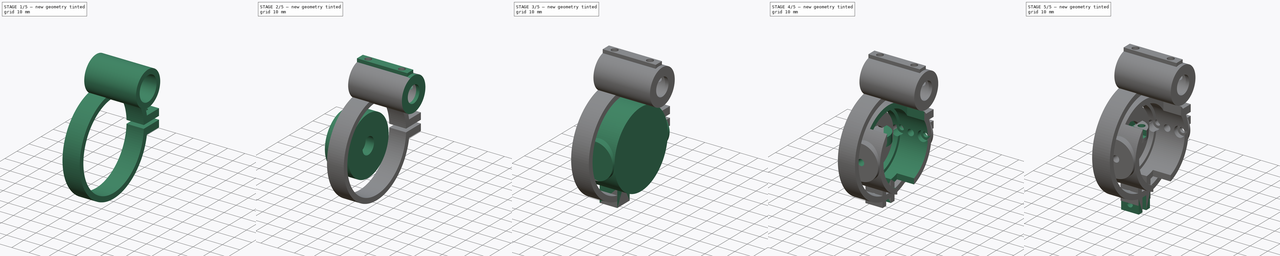
[diagram: build sequence overview — one tinted view per stage of 5, left to right]
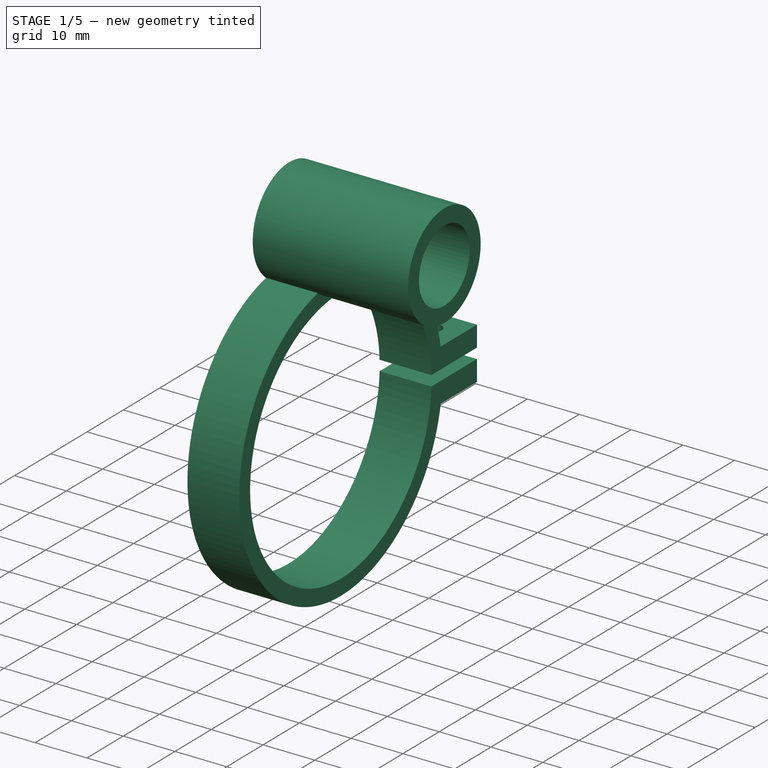
[diagram: stage 1 of 5 — iso view after this stage's code; geometry added in this stage tinted green]
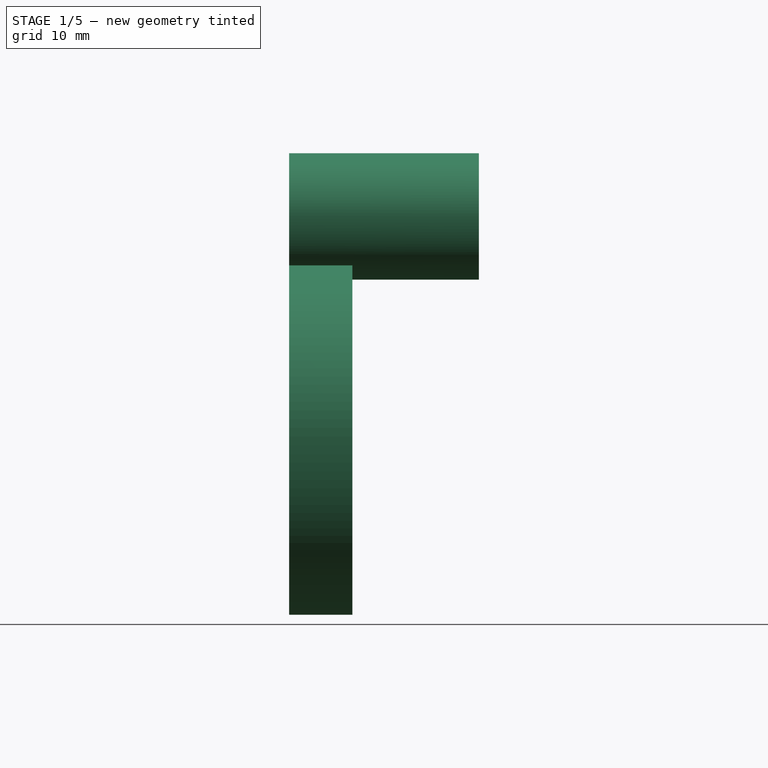
[diagram: stage 1 of 5 — front view after this stage's code; geometry added in this stage tinted green]
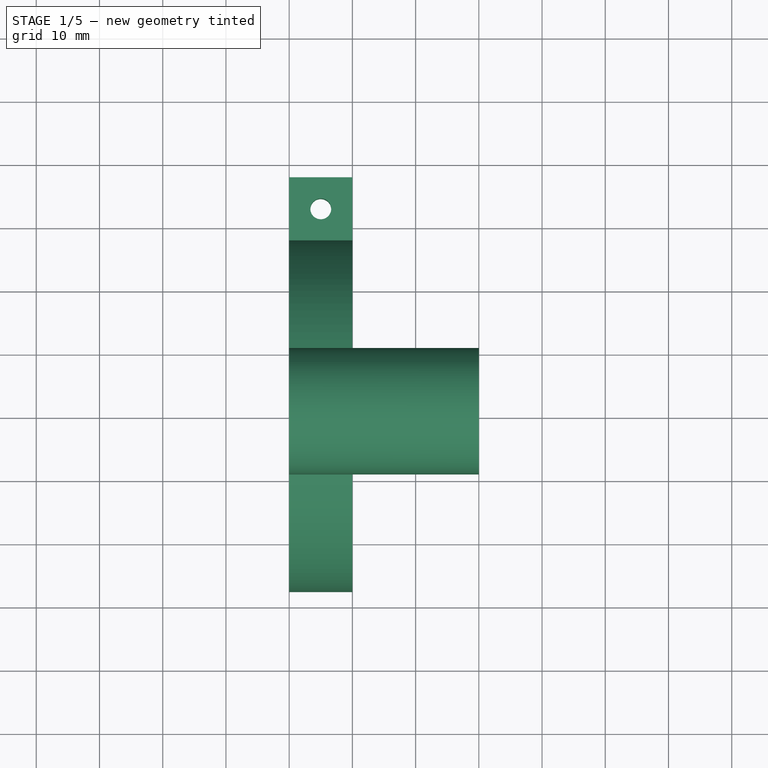
[diagram: stage 1 of 5 — top view after this stage's code; geometry added in this stage tinted green]
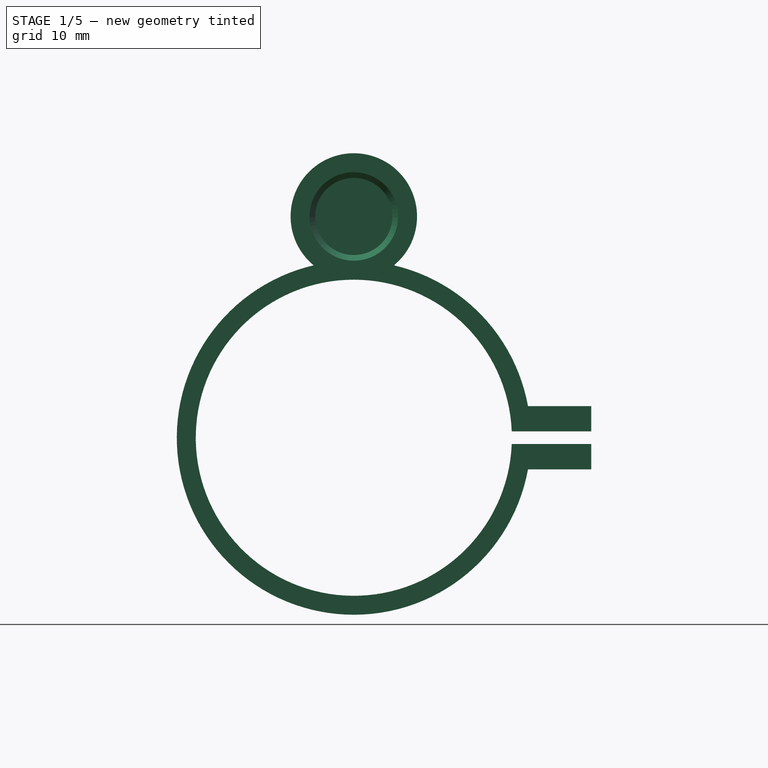
[diagram: stage 1 of 5 — right view after this stage's code; geometry added in this stage tinted green]
FCSTD DOCUMENT  (FreeCAD 0.18.4R)
Label: barrel_parts
License: All rights reserved
LicenseURL: http://en.wikipedia.org/wiki/All_rights_reserved
objects: Sketcher::SketchObject×36, PartDesign::Pocket×22, PartDesign::Pad×12, PartDesign::Body×6, PartDesign::SubtractiveCone×2, Spreadsheet::Sheet×1, PartDesign::AdditiveLoft×1, PartDesign::ShapeBinder×1
note: 117 computed .brp shape members not serialized (recipe doc carries the construction recipe); baked Part::Feature solids carry a one-line shape summary decoded from their .brp

FEATURE [PartDesign::Body] Body003  label="Instruments"
  Group = -> [Sketch049,Pad014,ShapeBinder,Sketch050,Pocket032]
  Origin = -> Origin003
  Placement = pos=(29,0,0) rot=(0,0,1;0rad)
  Tip = -> Pocket032
FEATURE [Sketcher::SketchObject] Sketch051
  MapMode = 5
  Placement = pos=(0,0,0) rot=(0.57735,0.57735,0.57735;2.0944rad)
  Support = -> [YZ_Plane009]
  sketch-geometry (2):
    g0: Circle CenterX=0 CenterY=0 CenterZ=0 NormalX=0 NormalY=0 NormalZ=1 AngleXU=0 Radius=25
    g1: Circle CenterX=0 CenterY=0 CenterZ=0 NormalX=0 NormalY=0 NormalZ=1 AngleXU=0 Radius=28
  constraints (4):
    c: Coincident(g0,g-1)
    c: Coincident(g1,g0)
    c: Diameter(g0) = 50
    c: Diameter(g1) = 56
FEATURE [PartDesign::Pad] Pad015
  Length = 10
  Length2 = 100
  Placement = pos=(0,0,0) rot=(0.57735,0.57735,0.57735;2.0944rad)
  Profile = -> Sketch051
  Refine = true
  Type = 0
FEATURE [Sketcher::SketchObject] Sketch052
  ExternalGeometry = -> [Pad015]
  MapMode = 5
  Placement = pos=(0,0,0) rot=(0.57735,0.57735,0.57735;2.0944rad)
  Support = -> [YZ_Plane009]
  sketch-geometry (4):
    g0: LineSegment StartX=27.55 StartY=5 StartZ=0 EndX=37.55 EndY=5 EndZ=0
    g1: LineSegment StartX=37.55 StartY=5 StartZ=0 EndX=37.55 EndY=-5 EndZ=0
    g2: LineSegment StartX=37.55 StartY=-5 StartZ=0 EndX=27.55 EndY=-5 EndZ=0
    g3: LineSegment StartX=27.55 StartY=-5 StartZ=0 EndX=27.55 EndY=5 EndZ=0
  constraints (11):
    c: Coincident(g0,g1)
    c: Coincident(g1,g2)
    c: Coincident(g2,g3)
    c: Coincident(g3,g0)
    c: Horizontal(g0)
    c: Horizontal(g2)
    c: Vertical(g3)
    c: PointOnObject(g0,g-4)
    c: Symmetric(g0,g1,g-1)
    c: DistanceY(g1,g1) = 10
    c: DistanceX(g0,g0) = 10
FEATURE [PartDesign::Pad] Pad016
  BaseFeature = -> Pad015
  Length = 10
  Length2 = 100
  Placement = pos=(0,0,0) rot=(0.57735,0.57735,0.57735;2.0944rad)
  Profile = -> Sketch052
  Refine = true
  Type = 0
FEATURE [Sketcher::SketchObject] Sketch053
  ExternalGeometry = -> [Pad016]
  MapMode = 5
  Placement = pos=(10,-2.1e-15,7.6e-15) rot=(0.57735,0.57735,0.57735;2.0944rad)
  Support = -> [Pad016]
  sketch-geometry (4):
    g0: LineSegment StartX=24.98 StartY=1 StartZ=0 EndX=37.55 EndY=1 EndZ=0
    g1: LineSegment StartX=37.55 StartY=1 StartZ=0 EndX=37.55 EndY=-1 EndZ=0
    g2: LineSegment StartX=37.55 StartY=-1 StartZ=0 EndX=24.98 EndY=-1 EndZ=0
    g3: LineSegment StartX=24.98 StartY=-1 StartZ=0 EndX=24.98 EndY=1 EndZ=0
  constraints (11):
    c: Coincident(g0,g1)
    c: Coincident(g1,g2)
    c: Coincident(g2,g3)
    c: Coincident(g3,g0)
    c: Horizontal(g0)
    c: Horizontal(g2)
    c: Vertical(g3)
    c: PointOnObject(g0,g-3)
    c: PointOnObject(g1,g-4)
    c: Symmetric(g0,g1,g-1)
    c: DistanceY(g1,g1) = 2
FEATURE [PartDesign::Pocket] Pocket033
  BaseFeature = -> Pad016
  Length = 5
  Length2 = 100
  Placement = pos=(0,0,0) rot=(0.57735,0.57735,0.57735;2.0944rad)
  Profile = -> Sketch053
  Refine = true
  Type = 1
FEATURE [Sketcher::SketchObject] Sketch054
  ExternalGeometry = -> [Pocket033]
  MapMode = 5
  Placement = pos=(-1.4e-15,2.2e-15,5) rot=(0,0,-1;1.5708rad)
  Support = -> [Pocket033]
  sketch-geometry (1):
    g0: Circle CenterX=-32.55 CenterY=5 CenterZ=0 NormalX=0 NormalY=0 NormalZ=1 AngleXU=0 Radius=1.65
  constraints (2):
    c: Symmetric(g-4,g-3,g0)
    c: Diameter(g0) = 3.3
FEATURE [PartDesign::Pocket] Pocket034
  BaseFeature = -> Pocket033
  Length = 5
  Length2 = 100
  Placement = pos=(0,0,0) rot=(0.57735,0.57735,0.57735;2.0944rad)
  Profile = -> Sketch054
  Refine = true
  Type = 1
FEATURE [Sketcher::SketchObject] Sketch055
  ExternalGeometry = -> [Pocket034]
  MapMode = 5
  Placement = pos=(1.4e-15,-2.2e-15,-5) rot=(0.707107,0.707107,0;3.14159rad)
  Support = -> [Pocket034]
  sketch-geometry (7):
    g0: LineSegment StartX=30.9622 StartY=2.25 StartZ=0 EndX=34.1377 EndY=2.25 EndZ=0
    g1: LineSegment StartX=34.1377 StartY=2.25 StartZ=0 EndX=35.7254 EndY=5 EndZ=0
    g2: LineSegment StartX=35.7254 StartY=5 StartZ=0 EndX=34.1377 EndY=7.75 EndZ=0
    g3: LineSegment StartX=34.1377 StartY=7.75 StartZ=0 EndX=30.9622 EndY=7.75 EndZ=0
    g4: LineSegment StartX=30.9622 StartY=7.75 StartZ=0 EndX=29.3745 EndY=5 EndZ=0
    g5: LineSegment StartX=29.3745 StartY=5 StartZ=0 EndX=30.9622 EndY=2.25 EndZ=0
    g6: Circle [constr] CenterX=32.55 CenterY=5 CenterZ=0 NormalX=0 NormalY=0 NormalZ=1 AngleXU=0 Radius=3.17543
  constraints (16):
    c: Coincident(g0,g1)
    c: Coincident(g1,g2)
    c: Coincident(g2,g3)
    c: Coincident(g3,g4)
    c: Coincident(g4,g5)
    c: Coincident(g5,g0)
    c: Equal(g0, g1-g5) x5
    c: PointOnObject(g0,g6)
    c: PointOnObject(g1,g6)
    c: PointOnObject(g2,g6)
    c: PointOnObject(g3,g6)
    c: PointOnObject(g4,g6)
    c: PointOnObject(g5,g6)
    c: Coincident(g6,g-3)
    c: Horizontal(g3)
    c: Distance(g2,g0) = 5.5
FEATURE [PartDesign::Pocket] Pocket035
  BaseFeature = -> Pocket034
  Length = 2
  Length2 = 100
  Placement = pos=(0,0,0) rot=(0.57735,0.57735,0.57735;2.0944rad)
  Profile = -> Sketch055
  Refine = true
  Type = 0
FEATURE [Sketcher::SketchObject] Sketch056
  ExternalGeometry = -> [Pocket035]
  MapMode = 5
  Placement = pos=(0,0,0) rot=(0.57735,0.57735,0.57735;2.0944rad)
  Support = -> [YZ_Plane009]
  sketch-geometry (1):
    g0: Circle CenterX=0 CenterY=35 CenterZ=0 NormalX=0 NormalY=0 NormalZ=1 AngleXU=0 Radius=10
  constraints (3):
    c: PointOnObject(g0,g-2)
    c: Tangent(g-3,g0)
    c: Diameter(g0) = 20
FEATURE [PartDesign::Pad] Pad017
  BaseFeature = -> Pocket035
  Length = 30
  Length2 = 100
  Placement = pos=(0,0,0) rot=(0.57735,0.57735,0.57735;2.0944rad)
  Profile = -> Sketch056
  Refine = true
  Type = 0
FEATURE [PartDesign::SubtractiveCone] Cone
  Angle = 360
  AttacherType = Attacher::AttachEngine3D
  AttachmentOffset = pos=(0,0,-15) rot=(0,0,1;0rad)
  BaseFeature = -> Pad017
  Height = 15
  MapMode = 11
  Placement = pos=(15,-1.24e-14,35) rot=(0.707107,0,0.707107;3.14159rad)
  Radius1 = 6.1
  Radius2 = 7
  Refine = true
  Support = -> [Pad017]
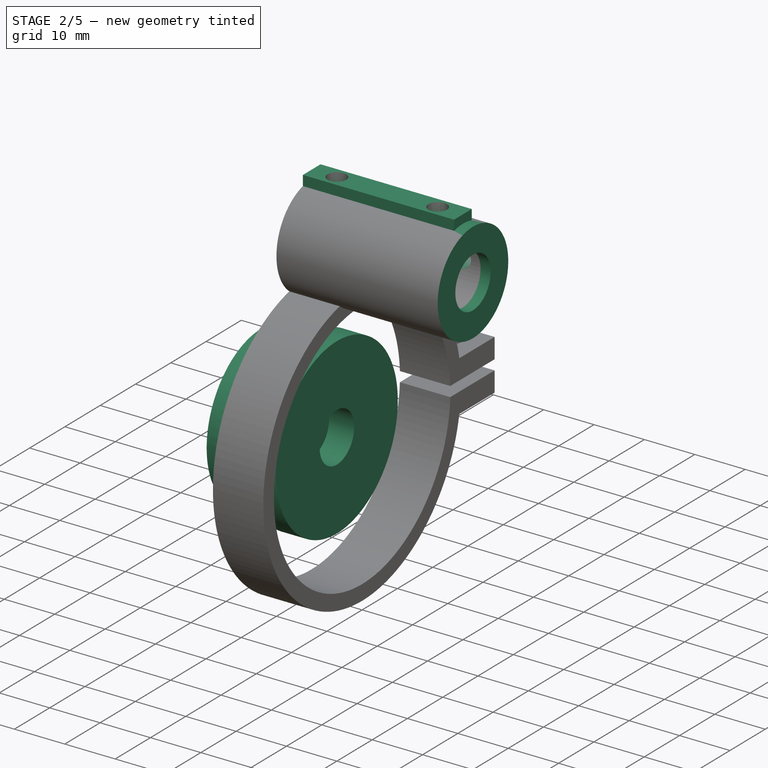
[diagram: stage 2 of 5 — iso view after this stage's code; geometry added in this stage tinted green]
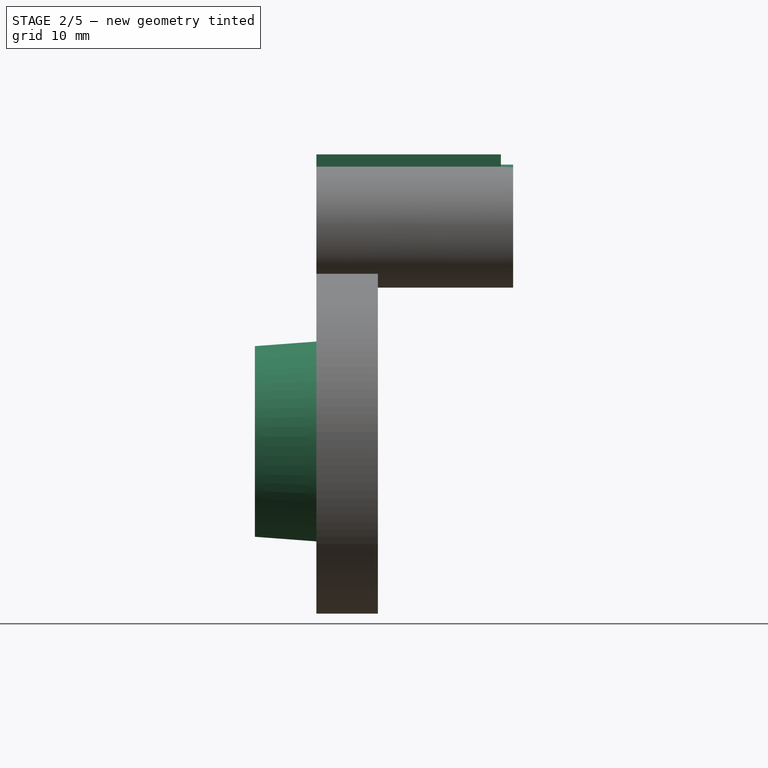
[diagram: stage 2 of 5 — front view after this stage's code; geometry added in this stage tinted green]
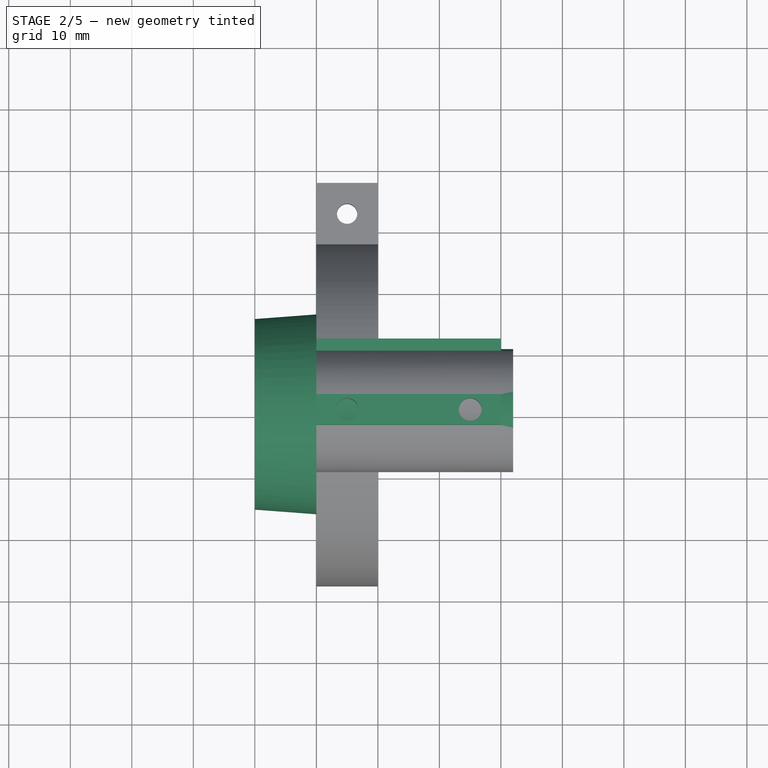
[diagram: stage 2 of 5 — top view after this stage's code; geometry added in this stage tinted green]
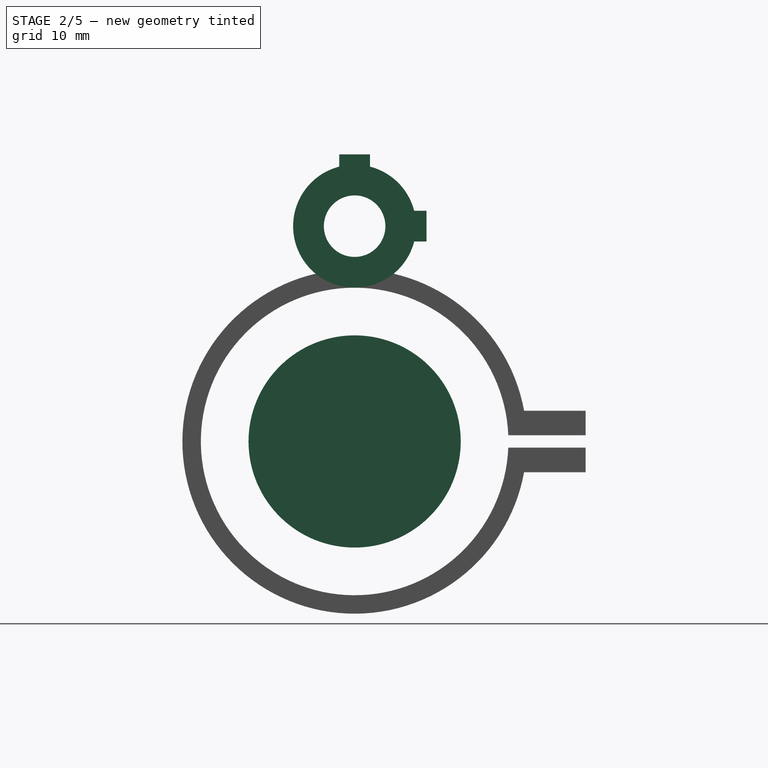
[diagram: stage 2 of 5 — right view after this stage's code; geometry added in this stage tinted green]
FEATURE [Spreadsheet::Sheet] Spreadsheet  label="Values"
  cells = A1=External diameter; B1(ext_diam)=32.5; A2=Internal diameter; B2(int_diam)=31.5; A4=Pivot Diameter; B4(pivot_diam)=37
FEATURE [Sketcher::SketchObject] Sketch007
  MapMode = 5
  Placement = pos=(0,0,0) rot=(0.57735,0.57735,0.57735;2.0944rad)
  Support = -> [YZ_Plane002]
  expr: Constraints[1] = Values.int_diam + 1
  sketch-geometry (1):
    g0: Circle CenterX=0 CenterY=0 CenterZ=0 NormalX=0 NormalY=0 NormalZ=1 AngleXU=0 Radius=16.25
  constraints (2):
    c: Coincident(g0,g-1)
    c: Diameter(g0) = 32.5
FEATURE [Sketcher::SketchObject] Sketch008
  AttachmentOffset = pos=(0,0,-10) rot=(0,0,1;0rad)
  MapMode = 5
  Placement = pos=(-10,2.2e-15,-2.2e-15) rot=(0.57735,0.57735,0.57735;2.0944rad)
  Support = -> [YZ_Plane002]
  expr: Constraints[1] = Values.int_diam - 0.5
  sketch-geometry (1):
    g0: Circle CenterX=0 CenterY=0 CenterZ=0 NormalX=0 NormalY=0 NormalZ=1 AngleXU=0 Radius=15.5
  constraints (2):
    c: Coincident(g0,g-1)
    c: Diameter(g0) = 31
FEATURE [PartDesign::AdditiveLoft] AdditiveLoft
  Closed = false
  Placement = pos=(0,0,0) rot=(0.57735,0.57735,0.57735;2.0944rad)
  Profile = -> Sketch007
  Refine = true
  Ruled = false
  Sections = -> [Sketch008]
FEATURE [Sketcher::SketchObject] Sketch009
  MapMode = 5
  Placement = pos=(0,0,0) rot=(0.57735,0.57735,0.57735;2.0944rad)
  Support = -> [YZ_Plane002]
  expr: Constraints[1] = Values.ext_diam + 2
  sketch-geometry (1):
    g0: Circle CenterX=0 CenterY=0 CenterZ=0 NormalX=0 NormalY=0 NormalZ=1 AngleXU=0 Radius=17.25
  constraints (2):
    c: Coincident(g0,g-1)
    c: Diameter(g0) = 34.5
FEATURE [PartDesign::Pad] Pad003
  BaseFeature = -> AdditiveLoft
  Length = 5
  Length2 = 100
  Placement = pos=(0,0,0) rot=(0.57735,0.57735,0.57735;2.0944rad)
  Profile = -> Sketch009
  Refine = true
  Type = 0
FEATURE [Sketcher::SketchObject] Sketch010
  MapMode = 5
  Placement = pos=(0,0,0) rot=(0.57735,0.57735,0.57735;2.0944rad)
  Support = -> [YZ_Plane002]
  sketch-geometry (1):
    g0: Circle CenterX=0 CenterY=0 CenterZ=0 NormalX=0 NormalY=0 NormalZ=1 AngleXU=0 Radius=4.9
  constraints (2):
    c: Coincident(g0,g-1)
    c: Diameter(g0) = 9.8
FEATURE [PartDesign::Pocket] Pocket004
  BaseFeature = -> Pad003
  Length = 5
  Length2 = 100
  Placement = pos=(0,0,0) rot=(0.57735,0.57735,0.57735;2.0944rad)
  Profile = -> Sketch010
  Refine = true
  Reversed = true
  Type = 1
FEATURE [PartDesign::SubtractiveCone] Cone001
  Angle = 360
  AttacherType = Attacher::AttachEngine3D
  BaseFeature = -> Cone
  Height = 15
  MapMode = 11
  Placement = pos=(9e-16,-1.8e-15,35) rot=(0.707107,0,0.707107;3.14159rad)
  Radius1 = 7
  Radius2 = 6.1
  Refine = true
  Support = -> [Cone]
FEATURE [Sketcher::SketchObject] Sketch057
  ExternalGeometry = -> [Cone001]
  MapMode = 5
  Placement = pos=(0,0,0) rot=(0.57735,0.57735,0.57735;2.0944rad)
  Support = -> [YZ_Plane009]
  sketch-geometry (8):
    g0: LineSegment StartX=-2.5 StartY=46.6825 StartZ=0 EndX=2.5 EndY=46.6825 EndZ=0
    g1: LineSegment StartX=2.5 StartY=46.6825 StartZ=0 EndX=2.5 EndY=44.6825 EndZ=0
    g2: LineSegment StartX=2.5 StartY=44.6825 StartZ=0 EndX=-2.5 EndY=44.6825 EndZ=0
    g3: LineSegment StartX=-2.5 StartY=44.6825 StartZ=0 EndX=-2.5 EndY=46.6825 EndZ=0
    g4: LineSegment StartX=9.68246 StartY=37.5 StartZ=0 EndX=11.6825 EndY=37.5 EndZ=0
    g5: LineSegment StartX=11.6825 StartY=37.5 StartZ=0 EndX=11.6825 EndY=32.5 EndZ=0
    g6: LineSegment StartX=11.6825 StartY=32.5 StartZ=0 EndX=9.68246 EndY=32.5 EndZ=0
    g7: LineSegment StartX=9.68246 StartY=32.5 StartZ=0 EndX=9.68246 EndY=37.5 EndZ=0
  constraints (24):
    c: Coincident(g0,g1)
    c: Coincident(g1,g2)
    c: Coincident(g2,g3)
    c: Coincident(g3,g0)
    c: Horizontal(g0)
    c: Horizontal(g2)
    c: Vertical(g1)
    c: Vertical(g3)
    c: PointOnObject(g1,g-3)
    c: PointOnObject(g2,g-3)
    c: DistanceX(g0,g0) = 5
    c: Coincident(g4,g5)
    c: Coincident(g5,g6)
    c: Coincident(g6,g7)
    c: Coincident(g7,g4)
    c: Horizontal(g4)
    c: Horizontal(g6)
    c: Vertical(g5)
    c: Vertical(g7)
    c: PointOnObject(g4,g-3)
    c: PointOnObject(g6,g-3)
    c: DistanceY(g5,g5) = 5
    c: DistanceY(g3,g3) = 2
    c: DistanceX(g4,g4) = 2
FEATURE [PartDesign::Pad] Pad018
  BaseFeature = -> Cone001
  Length = 30
  Length2 = 100
  Placement = pos=(9e-16,-1.8e-15,35) rot=(0.707107,0,0.707107;3.14159rad)
  Profile = -> Sketch057
  Refine = true
  Type = 0
FEATURE [Sketcher::SketchObject] Sketch058
  ExternalGeometry = -> [Pad018]
  MapMode = 5
  Placement = pos=(-2.4e-15,2.5e-15,46.6825) rot=(0,0,-1;1.5708rad)
  Support = -> [Pad018]
  sketch-geometry (2):
    g0: Circle CenterX=0 CenterY=25 CenterZ=0 NormalX=0 NormalY=0 NormalZ=1 AngleXU=0 Radius=1.85
    g1: Circle CenterX=0 CenterY=5 CenterZ=0 NormalX=0 NormalY=0 NormalZ=1 AngleXU=0 Radius=1.85
  constraints (6):
    c: PointOnObject(g0,g-2)
    c: PointOnObject(g1,g-2)
    c: Equal(g0,g1)
    c: Diameter(g0) = 3.7
    c: DistanceY(g0,g-3) = 5
    c: DistanceY(g-4,g1) = 5
FEATURE [PartDesign::Pocket] Pocket036
  BaseFeature = -> Pad018
  Length = 6
  Length2 = 100
  Placement = pos=(9e-16,-1.8e-15,35) rot=(0.707107,0,0.707107;3.14159rad)
  Profile = -> Sketch058
  Refine = true
  Type = 0
FEATURE [Sketcher::SketchObject] Sketch059
  ExternalGeometry = -> [Pocket036]
  MapMode = 5
  Placement = pos=(6.8e-15,11.6825,35) rot=(0.57735,0.57735,0.57735;4.18879rad)
  Support = -> [Pocket036]
  sketch-geometry (2):
    g0: Circle CenterX=0 CenterY=25 CenterZ=0 NormalX=0 NormalY=0 NormalZ=1 AngleXU=0 Radius=1.85
    g1: Circle CenterX=0 CenterY=5 CenterZ=0 NormalX=0 NormalY=0 NormalZ=1 AngleXU=0 Radius=1.85
  constraints (6):
    c: PointOnObject(g0,g-2)
    c: PointOnObject(g1,g-2)
    c: Equal(g0,g1)
    c: Diameter(g0) = 3.7
    c: DistanceY(g-1,g1) = 5
    c: DistanceY(g0,g-3) = 5
FEATURE [PartDesign::Pocket] Pocket037
  BaseFeature = -> Pocket036
  Length = 6
  Length2 = 100
  Placement = pos=(9e-16,-1.8e-15,35) rot=(0.707107,0,0.707107;3.14159rad)
  Profile = -> Sketch059
  Refine = true
  Type = 0
FEATURE [Sketcher::SketchObject] Sketch060
  ExternalGeometry = -> [Pocket037]
  MapMode = 5
  Placement = pos=(30,-1.09e-14,35) rot=(0.707107,0,0.707107;3.14159rad)
  Support = -> [Pocket037]
  sketch-geometry (2):
    g0: Circle CenterX=0 CenterY=0 CenterZ=0 NormalX=0 NormalY=0 NormalZ=1 AngleXU=0 Radius=10
    g1: Circle CenterX=0 CenterY=0 CenterZ=0 NormalX=0 NormalY=0 NormalZ=1 AngleXU=0 Radius=5
  constraints (4):
    c: Coincident(g0,g-1)
    c: Coincident(g1,g0)
    c: Equal(g-3,g0)
    c: Diameter(g1) = 10
FEATURE [PartDesign::Pad] Pad019
  BaseFeature = -> Pocket037
  Length = 2
  Length2 = 100
  Placement = pos=(9e-16,-1.8e-15,35) rot=(0.707107,0,0.707107;3.14159rad)
  Profile = -> Sketch060
  Refine = true
  Type = 0
FEATURE [PartDesign::Body] Body009  label="Sight2"
  Group = -> [Sketch051,Pad015,Sketch052,Pad016,Sketch053,Pocket033,Sketch054,Pocket034,Sketch055,Pocket035,Sketch056,Pad017,Cone,Cone001,Sketch057,Pad018,Sketch058,Pocket036,Sketch059,Pocket037,Sketch060,Pad019]
  Origin = -> Origin009
  Tip = -> Pad019
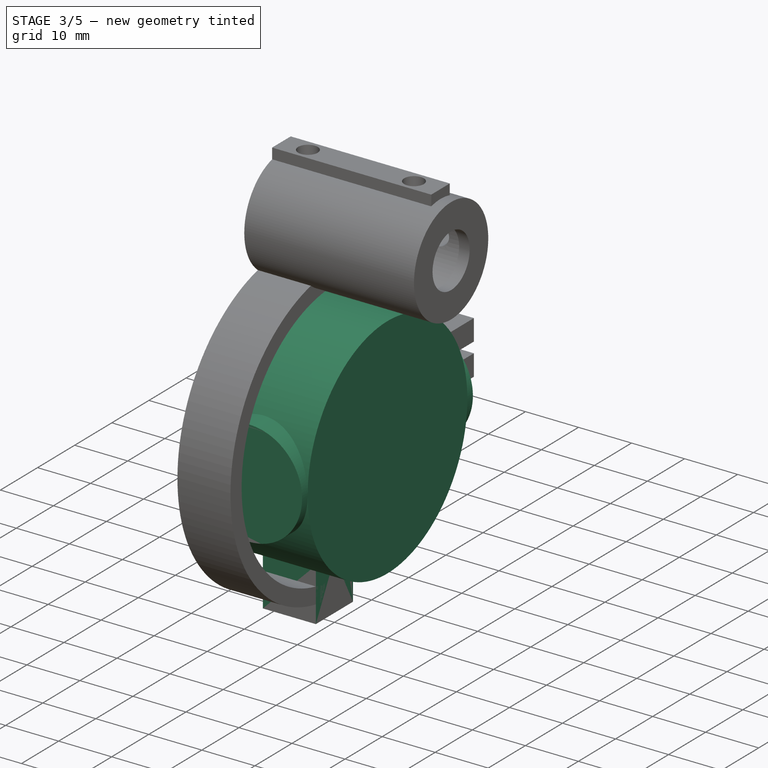
[diagram: stage 3 of 5 — iso view after this stage's code; geometry added in this stage tinted green]
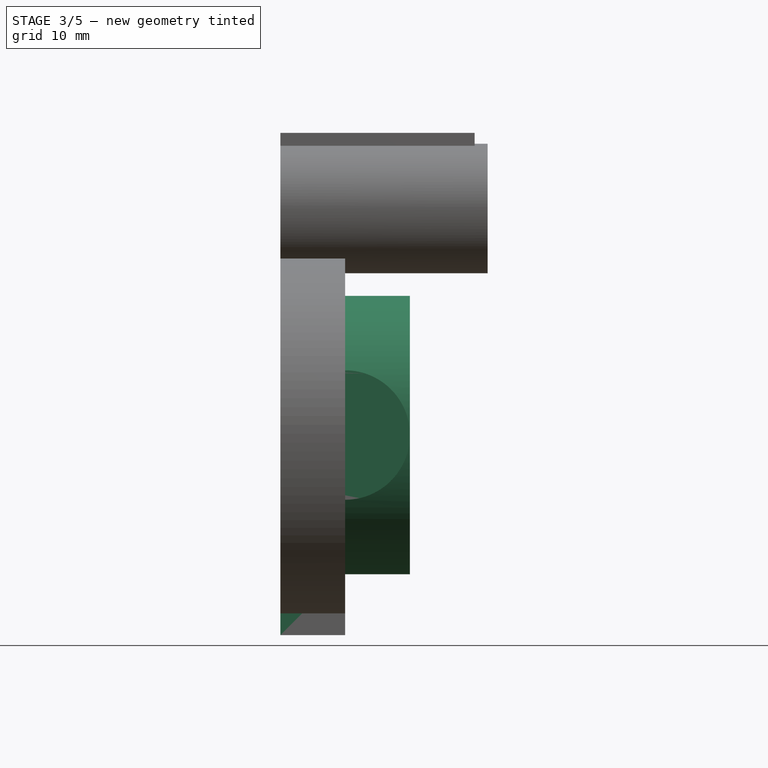
[diagram: stage 3 of 5 — front view after this stage's code; geometry added in this stage tinted green]
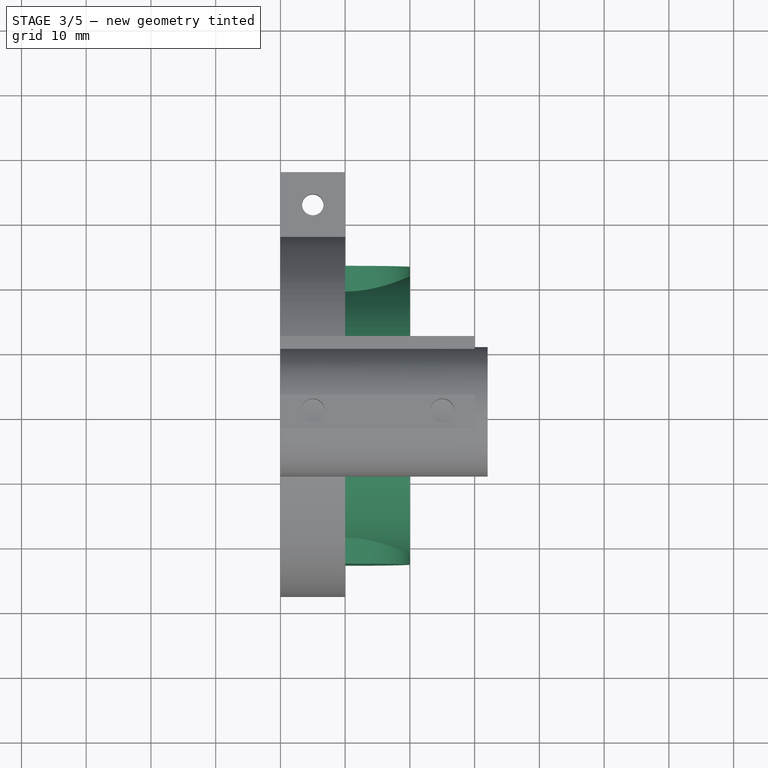
[diagram: stage 3 of 5 — top view after this stage's code; geometry added in this stage tinted green]
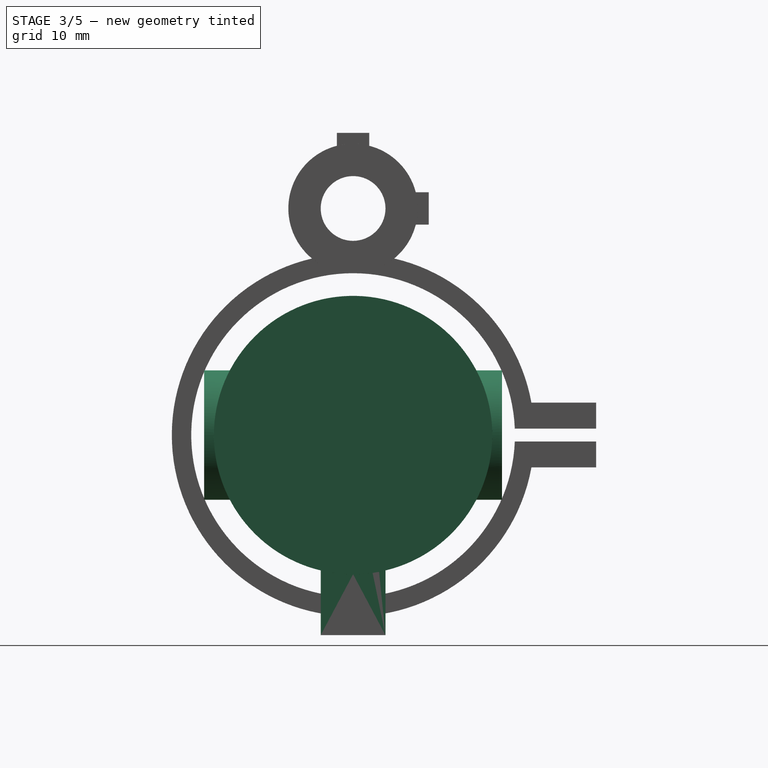
[diagram: stage 3 of 5 — right view after this stage's code; geometry added in this stage tinted green]
FEATURE [Sketcher::SketchObject] Sketch011
  ExternalGeometry = -> [Pocket004]
  MapMode = 5
  Placement = pos=(0,0,0) rot=(0.57735,0.57735,0.57735;2.0944rad)
  Support = -> [YZ_Plane002]
  sketch-geometry (11):
    g0: LineSegment StartX=-9.81495 StartY=0 StartZ=0 EndX=-4.90748 EndY=-8.5 EndZ=0
    g1: LineSegment StartX=-4.90748 StartY=-8.5 StartZ=0 EndX=4.90748 EndY=-8.5 EndZ=0
    g2: LineSegment StartX=4.90748 StartY=-8.5 StartZ=0 EndX=9.81495 EndY=0 EndZ=0
    g3: LineSegment StartX=9.81495 StartY=0 StartZ=0 EndX=4.90748 EndY=8.5 EndZ=0
    g4: LineSegment StartX=4.90748 StartY=8.5 StartZ=0 EndX=-4.90748 EndY=8.5 EndZ=0
    g5: LineSegment StartX=-4.90748 StartY=8.5 StartZ=0 EndX=-9.81495 EndY=0 EndZ=0
    g6: Circle [constr] CenterX=0 CenterY=0 CenterZ=0 NormalX=0 NormalY=0 NormalZ=1 AngleXU=0 Radius=9.81495
    g7: Circle CenterX=0 CenterY=12 CenterZ=0 NormalX=0 NormalY=0 NormalZ=1 AngleXU=0 Radius=1.85
    g8: Circle CenterX=0 CenterY=-12 CenterZ=0 NormalX=0 NormalY=0 NormalZ=1 AngleXU=0 Radius=1.85
    g9: GeomPoint X=0 Y=15.5 Z=0
    g10: GeomPoint X=0 Y=8.5 Z=0
  constraints (25):
    c: Coincident(g0,g1)
    c: Coincident(g1,g2)
    c: Coincident(g2,g3)
    c: Coincident(g3,g4)
    c: Coincident(g4,g5)
    c: Coincident(g5,g0)
    c: Equal(g0, g1-g5) x5
    c: PointOnObject(g0,g6)
    c: PointOnObject(g1,g6)
    c: PointOnObject(g2,g6)
    c: PointOnObject(g3,g6)
    c: PointOnObject(g4,g6)
    c: PointOnObject(g5,g6)
    c: Coincident(g6,g-1)
    c: Horizontal(g4)
    c: Distance(g3,g1) = 17
    c: PointOnObject(g7,g-2)
    c: PointOnObject(g9,g-2)
    c: Equal(g8,g7)
    c: Diameter(g8) = 3.7
    c: Symmetric(g8,g7,g-1)
    c: PointOnObject(g10,g4)
    c: PointOnObject(g9,g-3)
    c: Symmetric(g9,g10,g7)
    c: Distance(g8,g7) = 24  'screw_pitch'
FEATURE [PartDesign::Pocket] Pocket005
  BaseFeature = -> Pocket004
  Length = 5
  Length2 = 100
  Placement = pos=(0,0,0) rot=(0.57735,0.57735,0.57735;2.0944rad)
  Profile = -> Sketch011
  Refine = true
  Type = 1
FEATURE [Sketcher::SketchObject] Sketch012
  ExternalGeometry = -> [Pocket005]
  MapMode = 5
  Placement = pos=(0,0,0) rot=(0.57735,0.57735,0.57735;2.0944rad)
  Support = -> [YZ_Plane002]
  sketch-geometry (3):
    g0: Circle CenterX=-10.3923 CenterY=-6 CenterZ=0 NormalX=0 NormalY=0 NormalZ=1 AngleXU=0 Radius=1.75
    g1: GeomPoint X=-7.36122 Y=-4.25 Z=0
    g2: LineSegment [constr] StartX=-13.4234 StartY=-7.75 StartZ=0 EndX=0 EndY=9e-16 EndZ=0
  constraints (7):
    c: PointOnObject(g1,g-3)
    c: PointOnObject(g2,g-4)
    c: Perpendicular(g-3,g2)
    c: PointOnObject(g0,g2)
    c: Symmetric(g1,g2,g0)
    c: Diameter(g0) = 3.5
    c: Coincident(g2,g-4)
FEATURE [PartDesign::Pocket] Pocket006
  BaseFeature = -> Pocket005
  Length = 5
  Length2 = 100
  Midplane = true
  Placement = pos=(0,0,0) rot=(0.57735,0.57735,0.57735;2.0944rad)
  Profile = -> Sketch012
  Refine = true
  Type = 1
FEATURE [PartDesign::Body] Body002  label="End Cap"
  Group = -> [Sketch007,Sketch008,AdditiveLoft,Sketch009,Pad003,Sketch010,Pocket004,Sketch011,Pocket005,Sketch012,Pocket006]
  Origin = -> Origin002
  Placement = pos=(52,0,0) rot=(0,0,1;0rad)
  Tip = -> Pocket006
FEATURE [Sketcher::SketchObject] Sketch030
  MapMode = 5
  Placement = pos=(0,0,0) rot=(0.57735,0.57735,0.57735;2.0944rad)
  Support = -> [YZ_Plane007]
  expr: Constraints[0] = Values.pivot_diam + 6
  sketch-geometry (1):
    g0: Circle CenterX=0 CenterY=0 CenterZ=0 NormalX=0 NormalY=0 NormalZ=1 AngleXU=0 Radius=21.5
  constraints (2):
    c: Diameter(g0) = 43
    c: Coincident(g0,g-1)
FEATURE [PartDesign::Pad] Pad010
  Length = 20
  Length2 = 100
  Placement = pos=(0,0,0) rot=(0.57735,0.57735,0.57735;2.0944rad)
  Profile = -> Sketch030
  Refine = true
  Type = 0
FEATURE [Sketcher::SketchObject] Sketch031
  MapMode = 5
  Placement = pos=(0,0,0) rot=(1,0,0;1.5708rad)
  Support = -> [XZ_Plane007]
  sketch-geometry (1):
    g0: Circle CenterX=10 CenterY=0 CenterZ=0 NormalX=0 NormalY=0 NormalZ=1 AngleXU=0 Radius=10
  constraints (3):
    c: PointOnObject(g0,g-1)
    c: Diameter(g0) = 20
    c: Tangent(g0,g-2)
FEATURE [PartDesign::Pad] Pad011
  BaseFeature = -> Pad010
  Length = 46
  Length2 = 100
  Midplane = true
  Placement = pos=(0,0,0) rot=(0.57735,0.57735,0.57735;2.0944rad)
  Profile = -> Sketch031
  Refine = true
  Type = 0
FEATURE [Sketcher::SketchObject] Sketch032
  ExternalGeometry = -> [Pad011]
  MapMode = 5
  Placement = pos=(0,0,0) rot=(0.57735,0.57735,0.57735;2.0944rad)
  Support = -> [YZ_Plane007]
  sketch-geometry (4):
    g0: LineSegment StartX=-5 StartY=-20.9105 StartZ=0 EndX=5 EndY=-20.9105 EndZ=0
    g1: LineSegment StartX=5 StartY=-20.9105 StartZ=0 EndX=5 EndY=-30.9105 EndZ=0
    g2: LineSegment StartX=5 StartY=-30.9105 StartZ=0 EndX=-5 EndY=-30.9105 EndZ=0
    g3: LineSegment StartX=-5 StartY=-30.9105 StartZ=0 EndX=-5 EndY=-20.9105 EndZ=0
  constraints (11):
    c: Coincident(g0,g1)
    c: Coincident(g1,g2)
    c: Coincident(g2,g3)
    c: Coincident(g3,g0)
    c: Horizontal(g0)
    c: Vertical(g1)
    c: Vertical(g3)
    c: Symmetric(g1,g2,g-2)
    c: DistanceX(g2,g2) = 10
    c: DistanceY(g1,g1) = 10
    c: PointOnObject(g0,g-4)
FEATURE [PartDesign::Pad] Pad012
  BaseFeature = -> Pad011
  Length = 10
  Length2 = 100
  Placement = pos=(0,0,0) rot=(0.57735,0.57735,0.57735;2.0944rad)
  Profile = -> Sketch032
  Refine = true
  Type = 0
FEATURE [PartDesign::Body] Body007  label="Pivoteer"
  Group = -> [Sketch030,Pad010,Sketch031,Pad011,Sketch032,Pad012,Sketch033,Pocket018,Sketch034,Pocket019,Sketch035,Pocket020,Sketch036,Pocket021,Sketch046,Pocket029,Sketch047,Pocket030,Sketch048,Pocket031]
  Origin = -> Origin007
  Tip = -> Pocket031
FEATURE [Sketcher::SketchObject] Sketch049
  MapMode = 5
  Placement = pos=(0,0,0) rot=(0.57735,0.57735,0.57735;2.0944rad)
  Support = -> [YZ_Plane003]
  expr: Constraints[3] = Values.int_diam - 15.5
  expr: Constraints[2] = Values.int_diam - 0.5
  sketch-geometry (2):
    g0: Circle CenterX=0 CenterY=0 CenterZ=0 NormalX=0 NormalY=0 NormalZ=1 AngleXU=0 Radius=15.5
    g1: Circle CenterX=0 CenterY=0 CenterZ=0 NormalX=0 NormalY=0 NormalZ=1 AngleXU=0 Radius=8
  constraints (4):
    c: Coincident(g0,g-1)
    c: Coincident(g1,g0)
    c: Diameter(g0) = 31
    c: Diameter(g1) = 16
FEATURE [PartDesign::Pad] Pad014
  Length = 2
  Length2 = 100
  Placement = pos=(0,0,0) rot=(0.57735,0.57735,0.57735;2.0944rad)
  Profile = -> Sketch049
  Refine = true
  Type = 0
FEATURE [PartDesign::ShapeBinder] ShapeBinder
  Placement = pos=(0,0,0) rot=(0.57735,0.57735,0.57735;2.0944rad)
  Support = -> [Pocket006]
  TraceSupport = false
FEATURE [Sketcher::SketchObject] Sketch050
  ExternalGeometry = -> [ShapeBinder]
  MapMode = 5
  Placement = pos=(0,0,0) rot=(0.57735,0.57735,-0.57735;4.18879rad)
  Support = -> [Pad014]
  sketch-geometry (2):
    g0: Circle CenterX=-4.9e-15 CenterY=12 CenterZ=0 NormalX=0 NormalY=0 NormalZ=1 AngleXU=0 Radius=1.6
    g1: Circle CenterX=4e-16 CenterY=-12 CenterZ=0 NormalX=0 NormalY=0 NormalZ=1 AngleXU=0 Radius=1.6
  constraints (4):
    c: Coincident(g0,g-3)
    c: Equal(g0,g1)
    c: Diameter(g0) = 3.2
    c: Coincident(g1,g-4)
FEATURE [PartDesign::Pocket] Pocket032
  BaseFeature = -> Pad014
  Length = 5
  Length2 = 100
  Placement = pos=(0,0,0) rot=(0.57735,0.57735,0.57735;2.0944rad)
  Profile = -> Sketch050
  Refine = true
  Type = 1
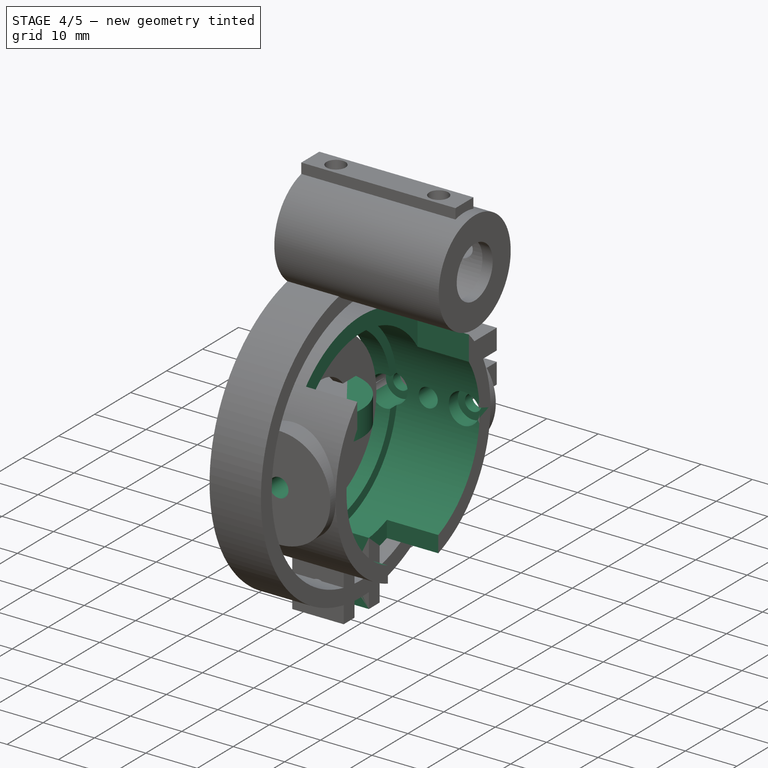
[diagram: stage 4 of 5 — iso view after this stage's code; geometry added in this stage tinted green]
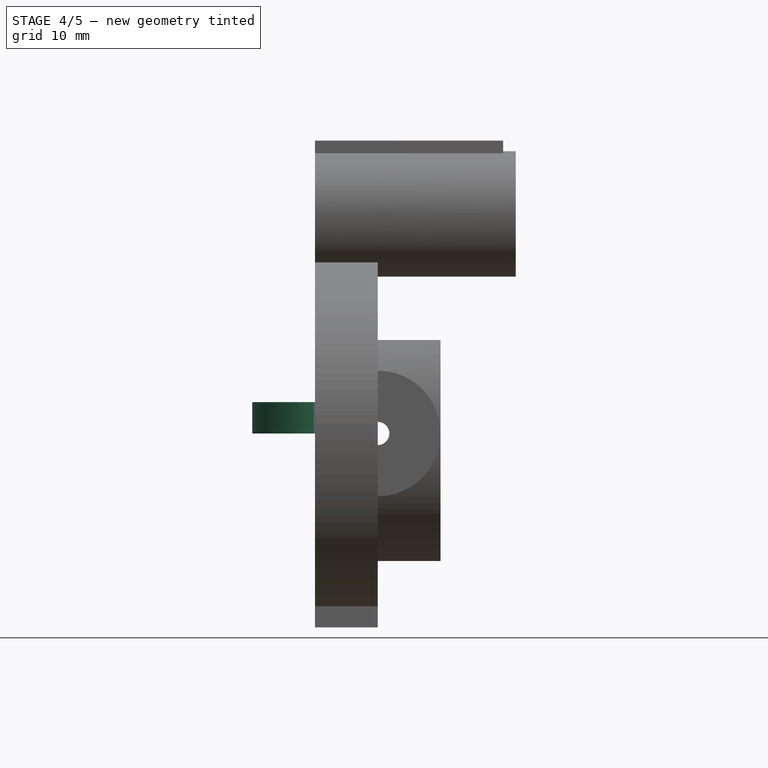
[diagram: stage 4 of 5 — front view after this stage's code; geometry added in this stage tinted green]
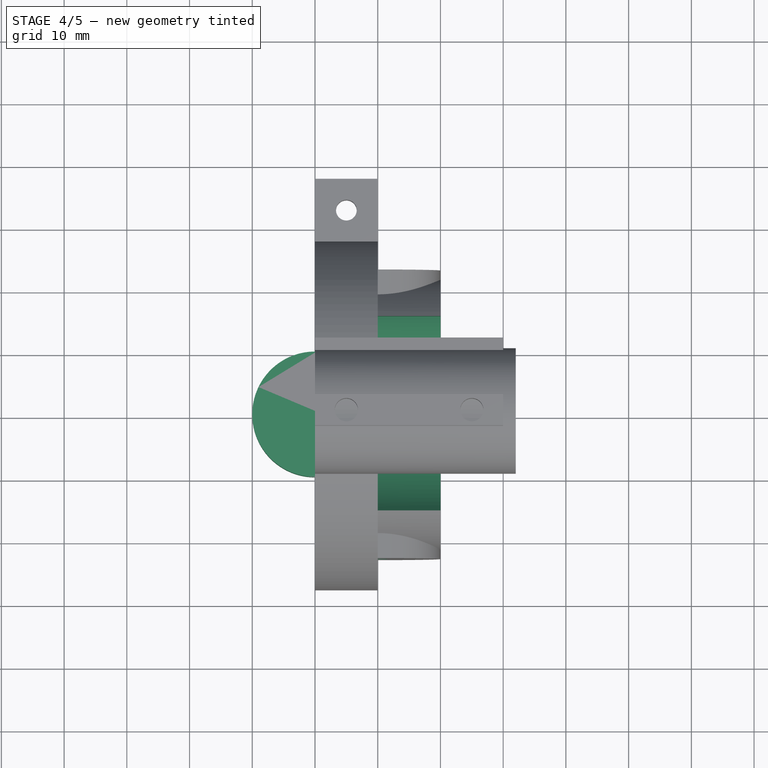
[diagram: stage 4 of 5 — top view after this stage's code; geometry added in this stage tinted green]
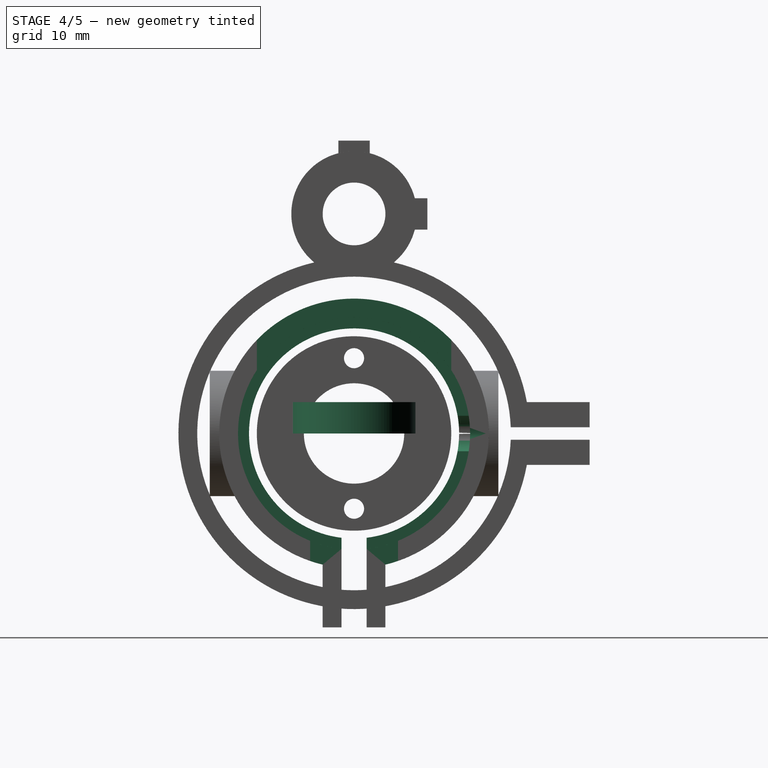
[diagram: stage 4 of 5 — right view after this stage's code; geometry added in this stage tinted green]
FEATURE [Sketcher::SketchObject] Sketch033
  ExternalGeometry = -> [Pad012]
  MapMode = 5
  Placement = pos=(-2e-15,-5,2e-15) rot=(0.57735,0.57735,-0.57735;2.0944rad)
  Support = -> [Pad012]
  sketch-geometry (1):
    g0: Circle CenterX=25.9105 CenterY=5 CenterZ=0 NormalX=0 NormalY=0 NormalZ=1 AngleXU=0 Radius=1.6
  constraints (1):
    c: Diameter(g0) = 3.2
FEATURE [PartDesign::Pocket] Pocket018
  BaseFeature = -> Pad012
  Length = 5
  Length2 = 100
  Placement = pos=(0,0,0) rot=(0.57735,0.57735,0.57735;2.0944rad)
  Profile = -> Sketch033
  Refine = true
  Type = 1
FEATURE [Sketcher::SketchObject] Sketch034
  ExternalGeometry = -> [Pocket018]
  MapMode = 5
  Placement = pos=(0,0,0) rot=(0.57735,0.57735,0.57735;2.0944rad)
  Support = -> [YZ_Plane007]
  expr: Constraints[9] = Values.ext_diam + 1
  sketch-geometry (4):
    g0: ArcOfCircle CenterX=0 CenterY=0 CenterZ=0 NormalX=0 NormalY=0 NormalZ=1 AngleXU=0 Radius=16.75 StartAngle=4.83208 EndAngle=10.8759
    g1: LineSegment StartX=-2 StartY=-16.6302 StartZ=0 EndX=-2 EndY=-30.9105 EndZ=0
    g2: LineSegment StartX=-2 StartY=-30.9105 StartZ=0 EndX=2 EndY=-30.9105 EndZ=0
    g3: LineSegment StartX=2 StartY=-30.9105 StartZ=0 EndX=2 EndY=-16.6302 EndZ=0
  constraints (12):
    c: Coincident(g0,g-1)
    c: Coincident(g0,g1)
    c: Vertical(g1)
    c: Coincident(g1,g2)
    c: Coincident(g2,g3)
    c: Coincident(g3,g0)
    c: Vertical(g3)
    c: Symmetric(g0,g0,g-2)
    c: DistanceX(g2,g2) = 4
    c: Diameter(g0) = 33.5
    c: PointOnObject(g1,g-3)
    c: PointOnObject(g2,g-3)
FEATURE [PartDesign::Pocket] Pocket019
  BaseFeature = -> Pocket018
  Length = 5
  Length2 = 100
  Placement = pos=(0,0,0) rot=(0.57735,0.57735,0.57735;2.0944rad)
  Profile = -> Sketch034
  Refine = true
  Reversed = true
  Type = 1
FEATURE [Sketcher::SketchObject] Sketch035
  AttachmentOffset = pos=(0,0,4) rot=(0,0,1;0rad)
  MapMode = 5
  Placement = pos=(4,-9e-16,9e-16) rot=(0.57735,0.57735,0.57735;2.0944rad)
  Support = -> [YZ_Plane007]
  expr: Constraints[1] = Values.pivot_diam
  sketch-geometry (1):
    g0: Circle CenterX=0 CenterY=0 CenterZ=0 NormalX=0 NormalY=0 NormalZ=1 AngleXU=0 Radius=18.5
  constraints (2):
    c: Coincident(g0,g-1)
    c: Diameter(g0) = 37
FEATURE [PartDesign::Pocket] Pocket020
  BaseFeature = -> Pocket019
  Length = 5
  Length2 = 100
  Placement = pos=(0,0,0) rot=(0.57735,0.57735,0.57735;2.0944rad)
  Profile = -> Sketch035
  Refine = true
  Reversed = true
  Type = 1
FEATURE [Sketcher::SketchObject] Sketch036
  AttachmentOffset = pos=(0,0,10) rot=(0,0,1;0rad)
  ExternalGeometry = -> [Pocket020]
  MapMode = 5
  Placement = pos=(10,-2.2e-15,2.2e-15) rot=(0.57735,0.57735,0.57735;2.0944rad)
  Support = -> [YZ_Plane007]
  sketch-geometry (8):
    g0: LineSegment StartX=-7 StartY=-17.1245 StartZ=0 EndX=7 EndY=-17.1245 EndZ=0
    g1: LineSegment StartX=7 StartY=-17.1245 StartZ=0 EndX=7 EndY=-21.4068 EndZ=0
    g2: LineSegment StartX=7 StartY=-21.4068 StartZ=0 EndX=-7 EndY=-21.4068 EndZ=0
    g3: LineSegment StartX=-7 StartY=-21.4068 StartZ=0 EndX=-7 EndY=-17.1245 EndZ=0
    g4: LineSegment StartX=-15.5 StartY=21.5 StartZ=0 EndX=15.5 EndY=21.5 EndZ=0
    g5: LineSegment StartX=15.5 StartY=21.5 StartZ=0 EndX=15.5 EndY=10.0995 EndZ=0
    g6: LineSegment StartX=15.5 StartY=10.0995 StartZ=0 EndX=-15.5 EndY=10.0995 EndZ=0
    g7: LineSegment StartX=-15.5 StartY=10.0995 StartZ=0 EndX=-15.5 EndY=21.5 EndZ=0
  constraints (18):
    c: Coincident(g0,g1)
    c: Coincident(g1,g2)
    c: Coincident(g2,g3)
    c: Coincident(g3,g0)
    c: Horizontal(g0)
    c: Horizontal(g2)
    c: Vertical(g1)
    c: Vertical(g3)
    c: DistanceX(g0,g0) = 14
    c: Coincident(g4,g5)
    c: Coincident(g5,g6)
    c: Coincident(g6,g7)
    c: Coincident(g7,g4)
    c: Horizontal(g4)
    c: Horizontal(g6)
    c: Vertical(g5)
    c: Vertical(g7)
    c: DistanceX(g6,g6) = 31
FEATURE [PartDesign::Pocket] Pocket021
  BaseFeature = -> Pocket020
  Length = 5
  Length2 = 100
  Placement = pos=(0,0,0) rot=(0.57735,0.57735,0.57735;2.0944rad)
  Profile = -> Sketch036
  Refine = true
  Reversed = true
  Type = 1
FEATURE [PartDesign::Body] Body  label="Sight"
  Group = -> [Sketch,Pad,Sketch039,Pocket,Sketch040,Pocket024,Sketch041,Pocket025]
  Origin = -> Origin
  Placement = pos=(-43,0,0) rot=(0,0,1;0rad)
  Tip = -> Pocket025
FEATURE [Sketcher::SketchObject] Sketch042
  MapMode = 5
  Support = -> [XY_Plane008]
  sketch-geometry (1):
    g0: Circle CenterX=0 CenterY=0 CenterZ=0 NormalX=0 NormalY=0 NormalZ=1 AngleXU=0 Radius=10
  constraints (2):
    c: Coincident(g0,g-1)
    c: Diameter(g0) = 20
FEATURE [PartDesign::Pad] Pad013
  Length = 5
  Length2 = 100
  Profile = -> Sketch042
  Refine = true
  Type = 0
FEATURE [PartDesign::Body] Body008  label="servo adapter"
  Group = -> [Sketch042,Pad013,Sketch043,Pocket026,Sketch044,Pocket027,Sketch045,Pocket028]
  Origin = -> Origin008
  Placement = pos=(10,28,3e-15) rot=(-0.862856,-0.357407,-0.357407;1.71777rad)
  Tip = -> Pocket028
FEATURE [Sketcher::SketchObject] Sketch046
  ExternalGeometry = -> [Pocket021]
  MapMode = 5
  Placement = pos=(0,-23,-5.1e-15) rot=(0.57735,0.57735,-0.57735;2.0944rad)
  Support = -> [Pocket021]
  sketch-geometry (1):
    g0: Circle CenterX=0 CenterY=10 CenterZ=0 NormalX=0 NormalY=0 NormalZ=1 AngleXU=0 Radius=1.85
  constraints (2):
    c: Coincident(g0,g-3)
    c: Diameter(g0) = 3.7
FEATURE [PartDesign::Pocket] Pocket029
  BaseFeature = -> Pocket021
  Length = 5
  Length2 = 100
  Placement = pos=(0,0,0) rot=(0.57735,0.57735,0.57735;2.0944rad)
  Profile = -> Sketch046
  Refine = true
  Type = 1
FEATURE [Sketcher::SketchObject] Sketch047
  ExternalGeometry = -> [Pocket029]
  MapMode = 5
  Placement = pos=(0,23,5.1e-15) rot=(-0.57735,-0.57735,-0.57735;2.0944rad)
  Support = -> [Pocket029]
  sketch-geometry (2):
    g0: Circle CenterX=0 CenterY=17 CenterZ=0 NormalX=0 NormalY=0 NormalZ=1 AngleXU=0 Radius=1.6
    g1: Circle CenterX=1.38e-14 CenterY=3 CenterZ=0 NormalX=0 NormalY=0 NormalZ=1 AngleXU=0 Radius=1.6
  constraints (5):
    c: PointOnObject(g0,g-2)
    c: Equal(g0,g1)
    c: Diameter(g0) = 3.2
    c: Symmetric(g0,g1,g-3)
    c: DistanceY(g1,g0) = 14
FEATURE [PartDesign::Pocket] Pocket030
  BaseFeature = -> Pocket029
  Length = 10
  Length2 = 100
  Placement = pos=(0,0,0) rot=(0.57735,0.57735,0.57735;2.0944rad)
  Profile = -> Sketch047
  Refine = true
  Type = 0
FEATURE [Sketcher::SketchObject] Sketch048
  AttachmentOffset = pos=(0,0,-2) rot=(0,0,1;0rad)
  ExternalGeometry = -> [Pocket030]
  MapMode = 5
  Placement = pos=(-2e-16,21,4.8e-15) rot=(-0.57735,-0.57735,-0.57735;2.0944rad)
  Support = -> [Pocket030]
  sketch-geometry (2):
    g0: Circle CenterX=0 CenterY=17 CenterZ=0 NormalX=0 NormalY=0 NormalZ=1 AngleXU=0 Radius=3
    g1: Circle CenterX=0 CenterY=3 CenterZ=0 NormalX=0 NormalY=0 NormalZ=1 AngleXU=0 Radius=3
  constraints (4):
    c: Coincident(g0,g-4)
    c: Coincident(g1,g-3)
    c: Diameter(g0) = 6
    c: Diameter(g1) = 6
FEATURE [PartDesign::Pocket] Pocket031
  BaseFeature = -> Pocket030
  Length = 10
  Length2 = 2
  Placement = pos=(0,0,0) rot=(0.57735,0.57735,0.57735;2.0944rad)
  Profile = -> Sketch048
  Refine = true
  Type = 0
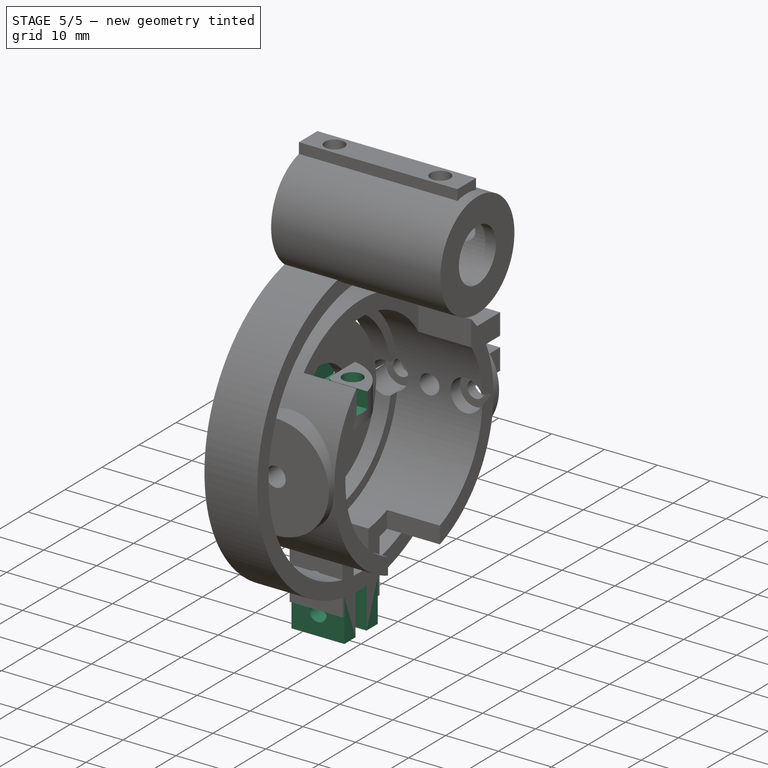
[diagram: stage 5 of 5 — iso view after this stage's code; geometry added in this stage tinted green]
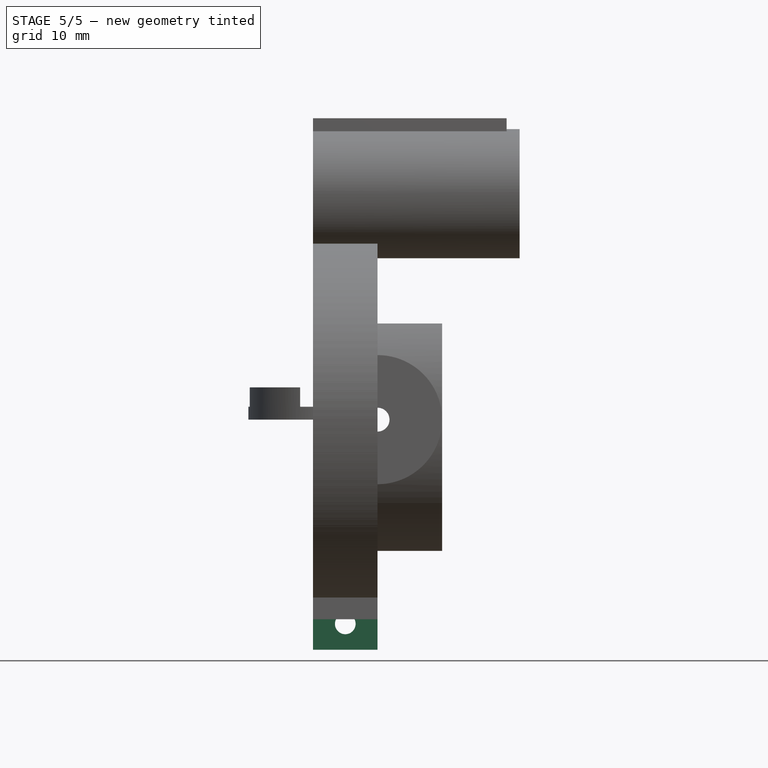
[diagram: stage 5 of 5 — front view after this stage's code; geometry added in this stage tinted green]
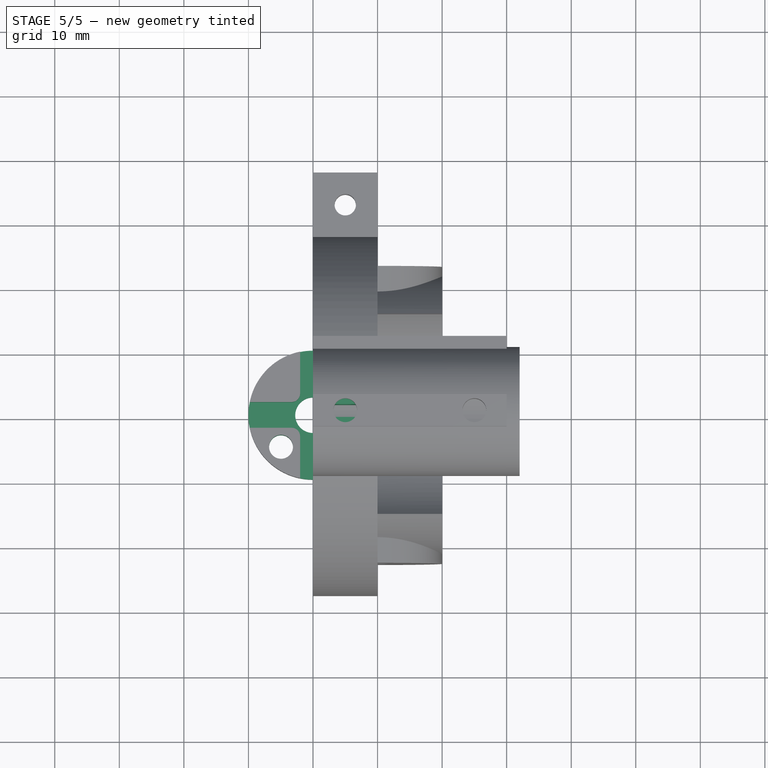
[diagram: stage 5 of 5 — top view after this stage's code; geometry added in this stage tinted green]
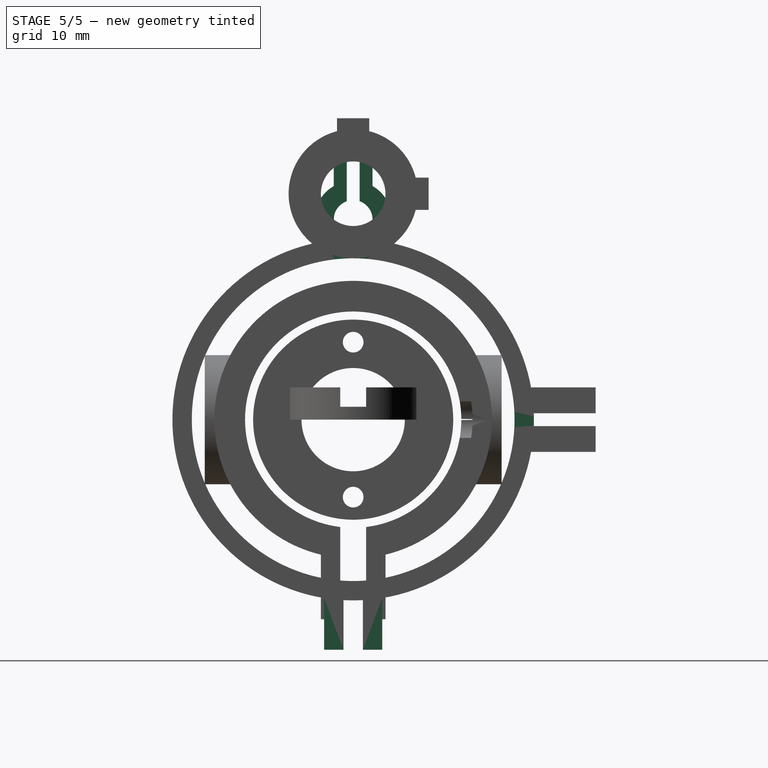
[diagram: stage 5 of 5 — right view after this stage's code; geometry added in this stage tinted green]
FEATURE [Sketcher::SketchObject] Sketch
  MapMode = 5
  Placement = pos=(0,0,0) rot=(0.57735,0.57735,0.57735;2.0944rad)
  Support = -> [YZ_Plane]
  sketch-geometry (14):
    g0: Circle CenterX=0 CenterY=0 CenterZ=0 NormalX=0 NormalY=0 NormalZ=1 AngleXU=0 Radius=25
    g1: ArcOfCircle CenterX=0 CenterY=0 CenterZ=0 NormalX=0 NormalY=0 NormalZ=1 AngleXU=0 Radius=28 StartAngle=1.74739 EndAngle=4.55097
    g2: ArcOfCircle CenterX=0 CenterY=0 CenterZ=0 NormalX=0 NormalY=0 NormalZ=1 AngleXU=0 Radius=28 StartAngle=4.8738 EndAngle=7.67738
    g3: Circle CenterX=0 CenterY=31 CenterZ=0 NormalX=0 NormalY=0 NormalZ=1 AngleXU=0 Radius=3
    g4: GeomPoint X=0 Y=28 Z=0
    g5: GeomPoint X=0 Y=25 Z=0
    g6: ArcOfCircle CenterX=0 CenterY=31 CenterZ=0 NormalX=0 NormalY=0 NormalZ=1 AngleXU=0 Radius=6 StartAngle=2.0944 EndAngle=3.75124
    g7: ArcOfCircle CenterX=0 CenterY=31 CenterZ=0 NormalX=0 NormalY=0 NormalZ=1 AngleXU=0 Radius=6 StartAngle=5.67354 EndAngle=7.33038
    g8: LineSegment StartX=3 StartY=36.1962 StartZ=0 EndX=3 EndY=44.1962 EndZ=0
    g9: LineSegment StartX=3 StartY=44.1962 StartZ=0 EndX=-3 EndY=44.1962 EndZ=0
    g10: LineSegment StartX=-3 StartY=44.1962 StartZ=0 EndX=-3 EndY=36.1962 EndZ=0
    g11: LineSegment StartX=-4.5 StartY=-27.636 StartZ=0 EndX=-4.5 EndY=-35.636 EndZ=0
    g12: LineSegment StartX=-4.5 StartY=-35.636 StartZ=0 EndX=4.5 EndY=-35.636 EndZ=0
    g13: LineSegment StartX=4.5 StartY=-35.636 StartZ=0 EndX=4.5 EndY=-27.636 EndZ=0
  constraints (37):
    c: Coincident(g0,g-1)
    c: Coincident(g1,g0)
    c: Coincident(g2,g0)
    c: Symmetric(g1,g2,g-2)
    c: Symmetric(g1,g2,g-2)
    c: PointOnObject(g3,g-2)
    c: PointOnObject(g4,g3)
    c: PointOnObject(g5,g0)
    c: DistanceY(g5,g4) = 3
    c: Diameter(g0) = 50
    c: Diameter(g3) = 6
    c: Diameter(g1) = 56
    c: Coincident(g6,g3)
    c: Coincident(g6,g1)
    c: Coincident(g7,g3)
    c: Coincident(g7,g2)
    c: Diameter(g6) = 12
    c: Coincident(g8,g9)
    c: Coincident(g9,g10)
    c: Vertical(g8)
    c: Vertical(g10)
    c: DistanceX(g9,g9) = 6
    c: Coincident(g6,g10)
    c: Coincident(g8,g7)
    c: Symmetric(g9,g8,g-2)
    c: DistanceY(g8,g8) = 8
    c: Coincident(g1,g11)
    c: Vertical(g11)
    c: Coincident(g11,g12)
    c: Horizontal(g12)
    c: Coincident(g12,g13)
    c: Coincident(g13,g2)
    c: Vertical(g13)
    c: DistanceX(g12,g12) = 9
    c: DistanceY(g13,g13) = 8
    c: PointOnObject(g5,g-2)
    c: PointOnObject(g4,g-2)
FEATURE [PartDesign::Pad] Pad
  Length = 10
  Length2 = 100
  Placement = pos=(0,0,0) rot=(0.57735,0.57735,0.57735;2.0944rad)
  Profile = -> Sketch
  Refine = true
  Type = 0
FEATURE [Sketcher::SketchObject] Sketch039
  ExternalGeometry = -> [Pad]
  MapMode = 5
  Placement = pos=(-1.3e-15,-3,7e-16) rot=(-0.57735,-0.57735,0.57735;4.18879rad)
  Support = -> [Pad]
  sketch-geometry (1):
    g0: Circle CenterX=-40.1962 CenterY=5 CenterZ=0 NormalX=0 NormalY=0 NormalZ=1 AngleXU=0 Radius=1.6
  constraints (2):
    c: Symmetric(g-4,g-3,g0)
    c: Diameter(g0) = 3.2
FEATURE [PartDesign::Pocket] Pocket
  BaseFeature = -> Pad
  Length = 5
  Length2 = 100
  Placement = pos=(0,0,0) rot=(0.57735,0.57735,0.57735;2.0944rad)
  Profile = -> Sketch039
  Refine = true
  Type = 1
FEATURE [Sketcher::SketchObject] Sketch040
  ExternalGeometry = -> [Pocket]
  MapMode = 5
  Placement = pos=(-2e-15,-4.5,1e-15) rot=(-0.57735,-0.57735,0.57735;4.18879rad)
  Support = -> [Pocket]
  sketch-geometry (1):
    g0: Circle CenterX=31.636 CenterY=5 CenterZ=0 NormalX=0 NormalY=0 NormalZ=1 AngleXU=0 Radius=1.6
  constraints (2):
    c: Symmetric(g-4,g-3,g0)
    c: Diameter(g0) = 3.2
FEATURE [PartDesign::Pocket] Pocket024
  BaseFeature = -> Pocket
  Length = 5
  Length2 = 100
  Placement = pos=(0,0,0) rot=(0.57735,0.57735,0.57735;2.0944rad)
  Profile = -> Sketch040
  Refine = true
  Type = 1
FEATURE [Sketcher::SketchObject] Sketch041
  ExternalGeometry = -> [Pocket024]
  MapMode = 5
  Placement = pos=(0,0,0) rot=(0.57735,0.57735,0.57735;2.0944rad)
  Support = -> [YZ_Plane]
  sketch-geometry (8):
    g0: LineSegment StartX=-1 StartY=44.1962 StartZ=0 EndX=1 EndY=44.1962 EndZ=0
    g1: LineSegment StartX=1 StartY=44.1962 StartZ=0 EndX=1 EndY=33.8284 EndZ=0
    g2: LineSegment StartX=1 StartY=33.8284 StartZ=0 EndX=-1 EndY=33.8284 EndZ=0
    g3: LineSegment StartX=-1 StartY=33.8284 StartZ=0 EndX=-1 EndY=44.1962 EndZ=0
    g4: LineSegment StartX=-1.5 StartY=-24.955 StartZ=0 EndX=1.5 EndY=-24.955 EndZ=0
    g5: LineSegment StartX=1.5 StartY=-24.955 StartZ=0 EndX=1.5 EndY=-35.636 EndZ=0
    g6: LineSegment StartX=1.5 StartY=-35.636 StartZ=0 EndX=-1.5 EndY=-35.636 EndZ=0
    g7: LineSegment StartX=-1.5 StartY=-35.636 StartZ=0 EndX=-1.5 EndY=-24.955 EndZ=0
  constraints (24):
    c: Coincident(g0,g1)
    c: Coincident(g1,g2)
    c: Coincident(g2,g3)
    c: Coincident(g3,g0)
    c: Horizontal(g0)
    c: Horizontal(g2)
    c: Vertical(g1)
    c: Vertical(g3)
    c: PointOnObject(g0,g-5)
    c: PointOnObject(g1,g-4)
    c: PointOnObject(g2,g-4)
    c: DistanceX(g0,g0) = 2
    c: Coincident(g4,g5)
    c: Coincident(g5,g6)
    c: Coincident(g6,g7)
    c: Coincident(g7,g4)
    c: Horizontal(g4)
    c: Horizontal(g6)
    c: Vertical(g5)
    c: Vertical(g7)
    c: PointOnObject(g4,g-3)
    c: PointOnObject(g5,g-6)
    c: DistanceX(g6,g6) = 3
    c: PointOnObject(g4,g-3)
FEATURE [PartDesign::Pocket] Pocket025
  BaseFeature = -> Pocket024
  Length = 5
  Length2 = 100
  Placement = pos=(0,0,0) rot=(0.57735,0.57735,0.57735;2.0944rad)
  Profile = -> Sketch041
  Refine = true
  Reversed = true
  Type = 1
FEATURE [Sketcher::SketchObject] Sketch043
  ExternalGeometry = -> [Pad013]
  MapMode = 5
  Placement = pos=(0,0,5) rot=(0,0,1;0rad)
  Support = -> [Pad013]
  sketch-geometry (16):
    g0: LineSegment StartX=-2 StartY=10 StartZ=0 EndX=2 EndY=10 EndZ=0
    g1: LineSegment StartX=2 StartY=10 StartZ=0 EndX=2 EndY=3.3 EndZ=0
    g2: LineSegment StartX=2 StartY=-10 StartZ=0 EndX=-2 EndY=-10 EndZ=0
    g3: LineSegment StartX=-2 StartY=-10 StartZ=0 EndX=-2 EndY=-3.3 EndZ=0
    g4: LineSegment StartX=-10 StartY=2 StartZ=0 EndX=-3.3 EndY=2 EndZ=0
    g5: LineSegment StartX=10 StartY=2 StartZ=0 EndX=10 EndY=-2 EndZ=0
    g6: LineSegment StartX=10 StartY=-2 StartZ=0 EndX=3.3 EndY=-2 EndZ=0
    g7: LineSegment StartX=-10 StartY=-2 StartZ=0 EndX=-10 EndY=2 EndZ=0
    g8: LineSegment StartX=3.3 StartY=2 StartZ=0 EndX=10 EndY=2 EndZ=0
    g9: LineSegment StartX=-2 StartY=3.3 StartZ=0 EndX=-2 EndY=10 EndZ=0
    g10: LineSegment StartX=2 StartY=-3.3 StartZ=0 EndX=2 EndY=-10 EndZ=0
    g11: LineSegment StartX=-3.3 StartY=-2 StartZ=0 EndX=-10 EndY=-2 EndZ=0
    g12: ArcOfCircle CenterX=-3.3 CenterY=3.3 CenterZ=0 NormalX=0 NormalY=0 NormalZ=1 AngleXU=0 Radius=1.3 StartAngle=4.71239 EndAngle=6.28319
    g13: ArcOfCircle CenterX=3.3 CenterY=3.3 CenterZ=0 NormalX=0 NormalY=0 NormalZ=1 AngleXU=0 Radius=1.3 StartAngle=3.14159 EndAngle=4.71239
    g14: ArcOfCircle CenterX=3.3 CenterY=-3.3 CenterZ=0 NormalX=0 NormalY=0 NormalZ=1 AngleXU=0 Radius=1.3 StartAngle=1.5708 EndAngle=3.14159
    g15: ArcOfCircle CenterX=-3.3 CenterY=-3.3 CenterZ=0 NormalX=0 NormalY=0 NormalZ=1 AngleXU=0 Radius=1.3 StartAngle=1e-16 EndAngle=1.5708
  constraints (38):
    c: Coincident(g0,g1)
    c: Coincident(g10,g2)
    c: Coincident(g2,g3)
    c: Coincident(g9,g0)
    c: Horizontal(g0)
    c: Horizontal(g2)
    c: Vertical(g1)
    c: Vertical(g3)
    c: Coincident(g8,g5)
    c: Coincident(g5,g6)
    c: Coincident(g11,g7)
    c: Coincident(g7,g4)
    c: Horizontal(g4)
    c: Horizontal(g6)
    c: Vertical(g5)
    c: Vertical(g7)
    c: Symmetric(g4,g5,g-1)
    c: Symmetric(g0,g2,g-1)
    c: Tangent(g0,g-3)
    c: Tangent(g7,g-3)
    c: DistanceX(g0,g0) = 4
    c: DistanceY(g7,g7) = 4
    c: Tangent(g4,g8)
    c: Tangent(g3,g9)
    c: Tangent(g1,g10)
    c: Tangent(g6,g11)
    c: Tangent(g4,g12) = -1.5708
    c: Tangent(g9,g12) = -1.5708
    c: Tangent(g1,g13) = -1.5708
    c: Tangent(g8,g13) = -1.5708
    c: Tangent(g6,g14) = -1.5708
    c: Tangent(g10,g14) = -1.5708
    c: Tangent(g3,g15) = -1.5708
    c: Tangent(g11,g15) = -1.5708
    c: Equal(g12,g13)
    c: Equal(g13,g14)
    c: Equal(g14,g15)
    c: Radius(g12) = 1.3
FEATURE [PartDesign::Pocket] Pocket026
  BaseFeature = -> Pad013
  Length = 3
  Length2 = 100
  Profile = -> Sketch043
  Refine = true
  Type = 0
FEATURE [Sketcher::SketchObject] Sketch044
  MapMode = 5
  Placement = pos=(0,0,0) rot=(1,0,0;3.14159rad)
  Support = -> [Pocket026]
  sketch-geometry (1):
    g0: Circle CenterX=0 CenterY=0 CenterZ=0 NormalX=0 NormalY=0 NormalZ=1 AngleXU=0 Radius=2.75
  constraints (2):
    c: Diameter(g0) = 5.5
    c: Coincident(g0,g-1)
FEATURE [PartDesign::Pocket] Pocket027
  BaseFeature = -> Pocket026
  Length = 5
  Length2 = 100
  Profile = -> Sketch044
  Refine = true
  Type = 1
FEATURE [Sketcher::SketchObject] Sketch045
  ExternalGeometry = -> [Pocket027]
  MapMode = 5
  Placement = pos=(0,0,5) rot=(0,0,1;0rad)
  Support = -> [Pocket027]
  sketch-geometry (3):
    g0: Circle CenterX=4.94975 CenterY=4.94975 CenterZ=0 NormalX=0 NormalY=0 NormalZ=1 AngleXU=0 Radius=1.85
    g1: Circle CenterX=-4.94975 CenterY=-4.94975 CenterZ=0 NormalX=0 NormalY=0 NormalZ=1 AngleXU=0 Radius=1.85
    g2: LineSegment [constr] StartX=-4.94975 StartY=-4.94975 StartZ=0 EndX=4.94975 EndY=4.94975 EndZ=0
  constraints (7):
    c: Equal(g0,g1)
    c: Coincident(g2,g1)
    c: Coincident(g2,g0)
    c: Symmetric(g1,g0,g-1)
    c: Symmetric(g-3,g-4,g2)
    c: Diameter(g0) = 3.7
    c: Distance(g1,g0) = 14
FEATURE [PartDesign::Pocket] Pocket028
  BaseFeature = -> Pocket027
  Length = 5
  Length2 = 100
  Profile = -> Sketch045
  Refine = true
  Type = 1
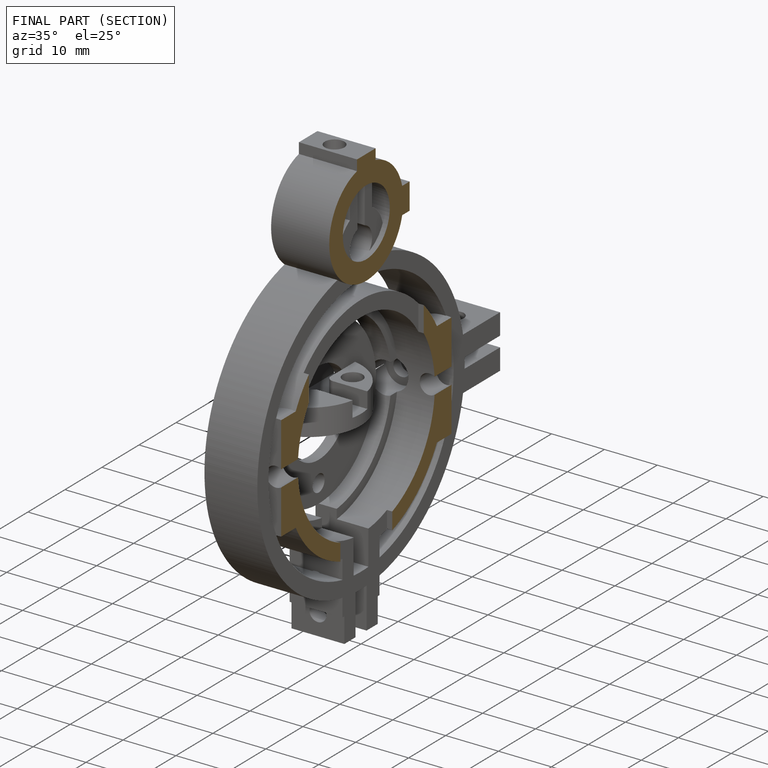
[diagram: finished part — half-section view (interior)]
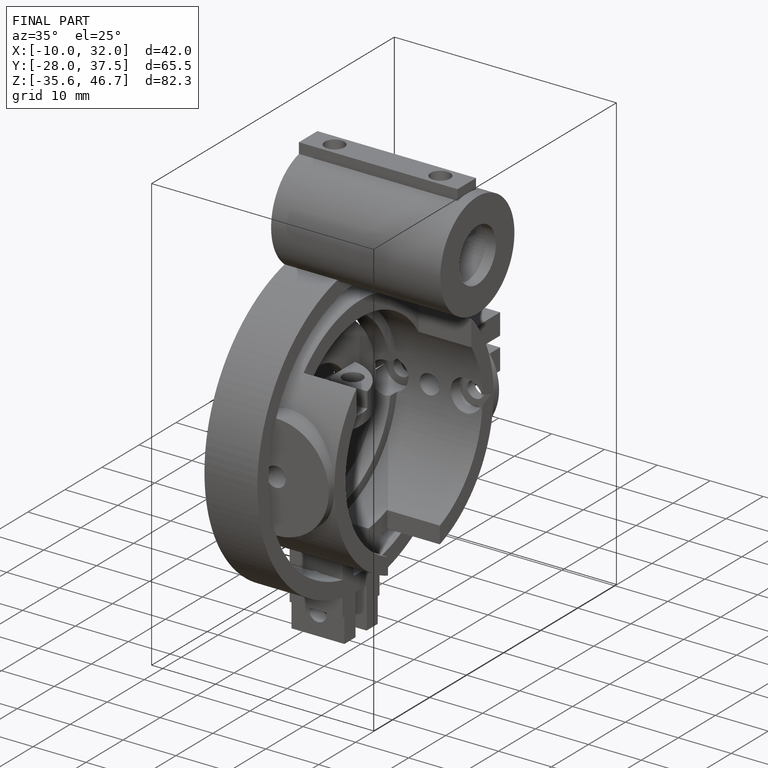
[diagram: finished part — iso view with bounding-box wireframe]
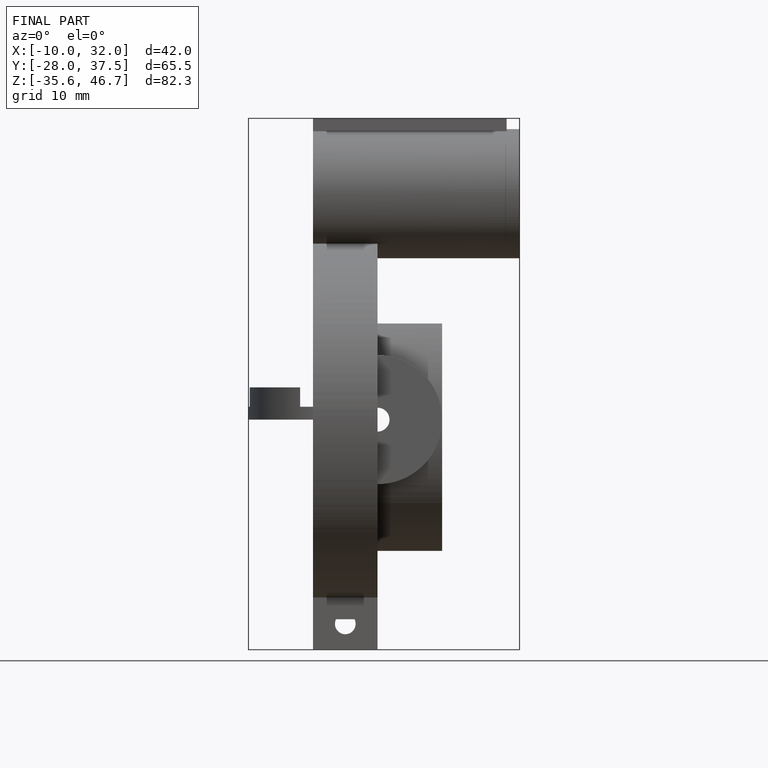
[diagram: finished part — front view with bounding-box wireframe]
